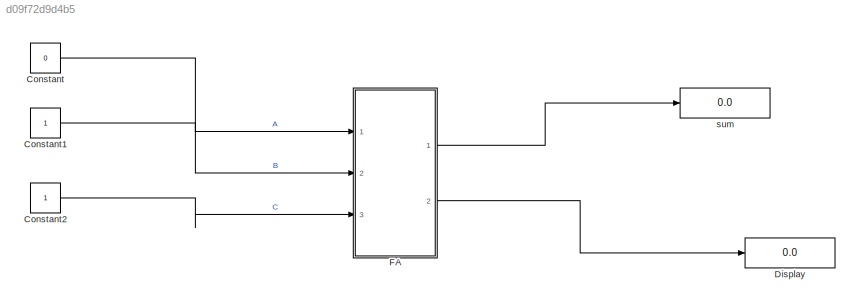
MODEL slx_d09f72d9d4b5
KIND model
CONFIG AbsTol = auto
CONFIG FixedStep = auto
CONFIG MaxStep = auto
CONFIG MinStep = auto
CONFIG RelTol = 1e-3
CONFIG SampleTimeConstraint = Unconstrained
CONFIG Solver = ode45
CONFIG SolverMode = Auto
CONFIG SolverName = ode45
CONFIG StartTime = 0.0
CONFIG StopTime = 10.0
BLOCK [Constant] Constant
  Value = 0
BLOCK [Constant] Constant1
BLOCK [Constant] Constant2
BLOCK [Display] Display
  Decimation = 1
  Ports = [1]
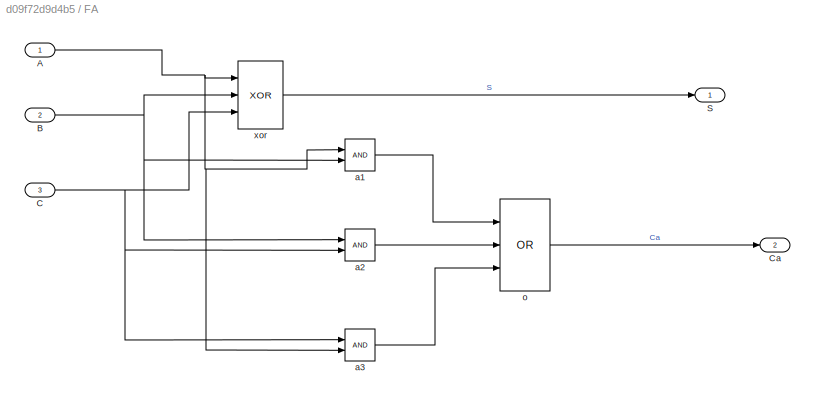
BLOCK [SubSystem] FA
  Ports = [3, 2]
  RequestExecContextInheritance = off
BLOCK [Inport] FA/A
  IconDisplay = Port number
BLOCK [Inport] FA/B
  IconDisplay = Port number
  Port = 2
BLOCK [Inport] FA/C
  IconDisplay = Port number
  Port = 3
BLOCK [Outport] FA/Ca
  IconDisplay = Port number
  Port = 2
BLOCK [Outport] FA/S
  IconDisplay = Port number
BLOCK [Logic] FA/a1
  AllPortsSameDT = off
  IconShape = distinctive
  OutDataTypeStr = boolean
  Ports = [2, 1]
BLOCK [Logic] FA/a2
  AllPortsSameDT = off
  IconShape = distinctive
  OutDataTypeStr = boolean
  Ports = [2, 1]
BLOCK [Logic] FA/a3
  AllPortsSameDT = off
  IconShape = distinctive
  OutDataTypeStr = boolean
  Ports = [2, 1]
BLOCK [Logic] FA/o
  AllPortsSameDT = off
  IconShape = distinctive
  Inputs = 3
  Operator = OR
  OutDataTypeStr = boolean
  Ports = [3, 1]
BLOCK [Logic] FA/xor
  AllPortsSameDT = off
  IconShape = distinctive
  Inputs = 3
  Operator = XOR
  OutDataTypeStr = boolean
  Ports = [3, 1]
BLOCK [Display] sum
  Decimation = 1
  Ports = [1]
LINE Constant1:1 -> FA:2
LINE Constant2:1 -> FA:3
LINE Constant:1 -> FA:1
NET FA/A:1 -> FA/a1:1, FA/a3:2, FA/xor:1
NET FA/B:1 -> FA/a1:2, FA/a2:1, FA/xor:2
NET FA/C:1 -> FA/a2:2, FA/a3:1, FA/xor:3
LINE FA/a1:1 -> FA/o:1
LINE FA/a2:1 -> FA/o:2
LINE FA/a3:1 -> FA/o:3
LINE FA/o:1 -> FA/Ca:1
LINE FA/xor:1 -> FA/S:1
LINE FA:1 -> sum:1
LINE FA:2 -> Display:1
note: NET lines group one-source signal fan-out (src -> all destinations, sorted); 1:1 wires keep LINE
